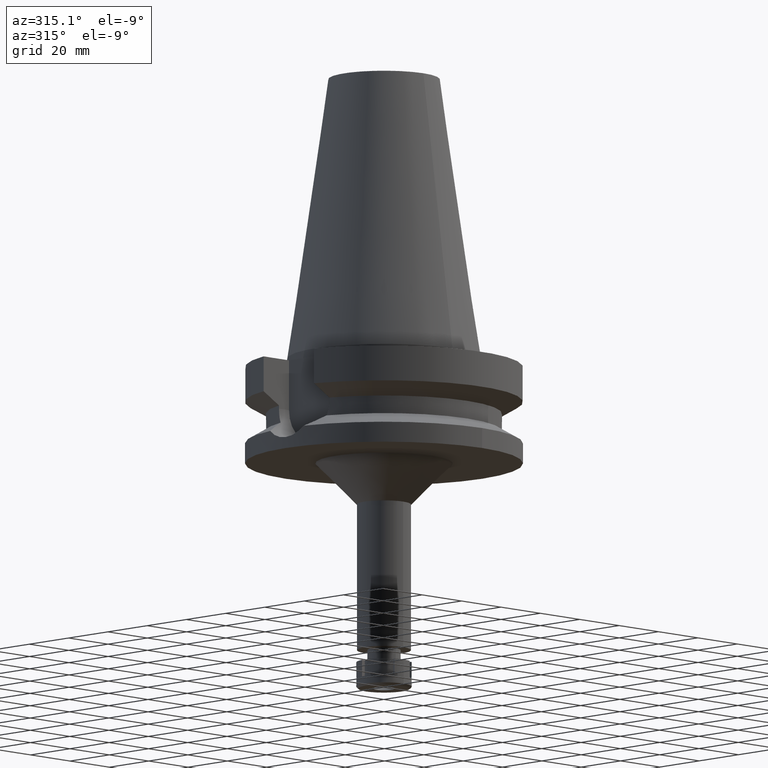
[diagram: clean part render]
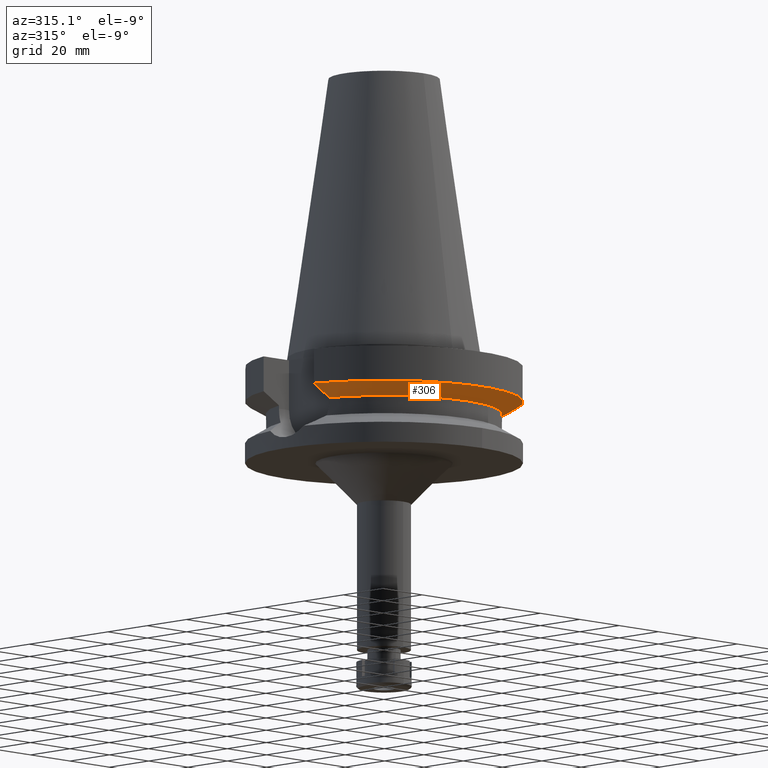
[diagram: same view with one face highlighted and labeled with its STEP entity id]
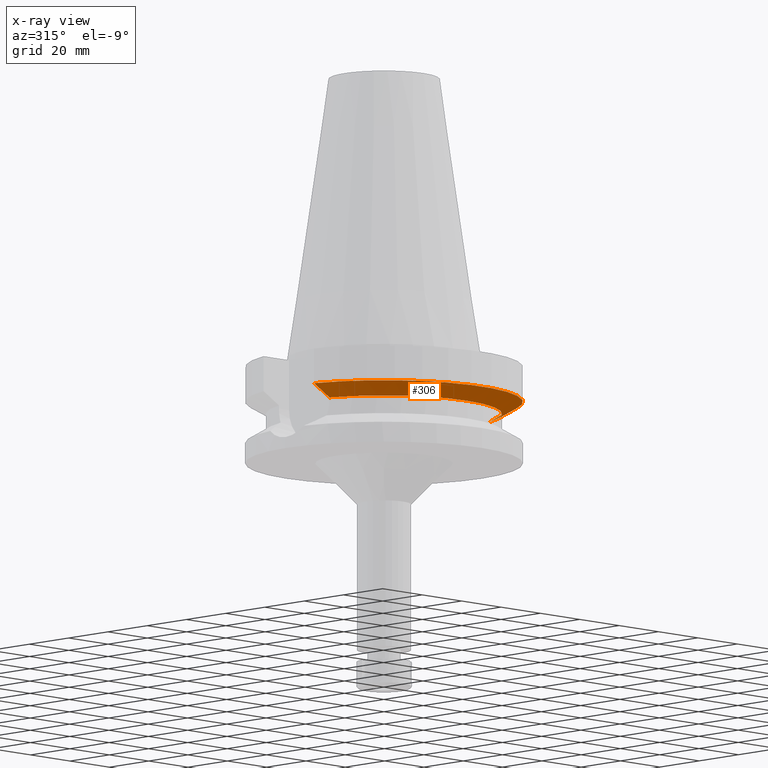
[diagram: x-ray of the same camera — body ghosted, the highlighted face saturated]
A machine part, auxiliary view. The second image highlights one B-rep face of the part: STEP entity #306.
The next image is the same camera in x-ray: the body ghosted, the highlighted face saturated — about 0% of this face is hidden behind the body in this view.
In plain terms, the highlighted conical surface has half-angle 60 deg.
Its self-contained STEP definition (entity closure, byte-faithful):
#4 = CARTESIAN_POINT ( 'NONE',  ( 40.51083188481999997, -12.84999999999999964, -19.99281925464999787 ) ) ;
#107 = DIRECTION ( 'NONE',  ( 0.0000000000000000000, 0.0000000000000000000, -1.000000000000000000 ) ) ;
#110 = DIRECTION ( 'NONE',  ( 0.0000000000000000000, 0.0000000000000000000, 1.000000000000000000 ) ) ;
#129 = CARTESIAN_POINT ( 'NONE',  ( 40.51083188481999997, -12.84999999999999964, -19.99281925464999787 ) ) ;
#130 = CARTESIAN_POINT ( 'NONE',  ( -42.90862468357058646, -12.84999310967845965, -18.67324792381405985 ) ) ;
#306 = ADVANCED_FACE ( 'NONE', ( #2939 ), #1688, .T. ) ;
#346 = CARTESIAN_POINT ( 'NONE',  ( 0.0000000000000000000, 1.006319759053999930E-14, -19.99281925464999787 ) ) ;
#372 = CARTESIAN_POINT ( 'NONE',  ( 42.90862812516864011, -12.84999309977980531, -18.67324600070691432 ) ) ;
#399 = ORIENTED_EDGE ( 'NONE', *, *, #1816, .F. ) ;
#424 = CARTESIAN_POINT ( 'NONE',  ( -45.51179881397922600, -12.85000770643412871, -17.22986717167533399 ) ) ;
#703 = CARTESIAN_POINT ( 'NONE',  ( 45.51179417773550995, -12.85000770643869750, -17.22986972868968891 ) ) ;
#710 = CARTESIAN_POINT ( 'NONE',  ( -40.51083297651000237, -12.84999655833999910, -19.99284566700000099 ) ) ;
#1134 = AXIS2_PLACEMENT_3D ( 'NONE', #1525, #1347, #1266 ) ;
#1240 = DIRECTION ( 'NONE',  ( 0.0000000000000000000, -1.000000000000000000, 0.0000000000000000000 ) ) ;
#1263 = CARTESIAN_POINT ( 'NONE',  ( -40.51083297651000237, -12.84999655833999910, -19.99284566700000099 ) ) ;
#1266 = DIRECTION ( 'NONE',  ( 0.0000000000000000000, 1.000000000000000000, 0.0000000000000000000 ) ) ;
#1327 = VERTEX_POINT ( 'NONE', #2423 ) ;
#1347 = DIRECTION ( 'NONE',  ( 0.0000000000000000000, 0.0000000000000000000, 1.000000000000000000 ) ) ;
#1428 = EDGE_CURVE ( 'NONE', #2824, #1327, #2990, .T. ) ;
#1463 = AXIS2_PLACEMENT_3D ( 'NONE', #346, #107, #1487 ) ;
#1487 = DIRECTION ( 'NONE',  ( 0.9531960443486575674, -0.3023529411764863672, 0.0000000000000000000 ) ) ;
#1525 = CARTESIAN_POINT ( 'NONE',  ( 0.0000000000000000000, 1.006319759053999930E-14, -17.82775574519000017 ) ) ;
#1688 = CONICAL_SURFACE ( 'NONE', #1134, 46.25000000000000000, 1.047197551196400456 ) ;
#1727 = ORIENTED_EDGE ( 'NONE', *, *, #3034, .T. ) ;
#1816 = EDGE_CURVE ( 'NONE', #1912, #1327, #3672, .T. ) ;
#1851 = CARTESIAN_POINT ( 'NONE',  ( 48.32057015392000210, -12.84999999999999964, -15.66269223573000069 ) ) ;
#1912 = VERTEX_POINT ( 'NONE', #3519 ) ;
#2058 = AXIS2_PLACEMENT_3D ( 'NONE', #3213, #110, #1240 ) ;
#2108 = CARTESIAN_POINT ( 'NONE',  ( -48.32056912861000342, -12.85000385554000069, -15.66265769811000119 ) ) ;
#2119 = EDGE_LOOP ( 'NONE', ( #1727, #2790, #2995, #399 ) ) ;
#2358 = B_SPLINE_CURVE_WITH_KNOTS ( 'NONE', 3,
 ( #2108, #424, #130, #1263 ),
 .UNSPECIFIED., .F., .F.,
 ( 4, 4 ),
 ( 0.0000000000000000000, 1.000000000000000000 ),
 .UNSPECIFIED. ) ;
#2377 = EDGE_CURVE ( 'NONE', #2824, #2431, #2657, .T. ) ;
#2423 = CARTESIAN_POINT ( 'NONE',  ( 48.32057015392000210, -12.84999999999999964, -15.66269223573000069 ) ) ;
#2431 = VERTEX_POINT ( 'NONE', #710 ) ;
#2657 = CIRCLE ( 'NONE', #1463, 42.50000000000002132 ) ;
#2790 = ORIENTED_EDGE ( 'NONE', *, *, #2377, .F. ) ;
#2824 = VERTEX_POINT ( 'NONE', #4 ) ;
#2939 = FACE_OUTER_BOUND ( 'NONE', #2119, .T. ) ;
#2990 = B_SPLINE_CURVE_WITH_KNOTS ( 'NONE', 3,
 ( #129, #372, #703, #1851 ),
 .UNSPECIFIED., .F., .F.,
 ( 4, 4 ),
 ( 0.0000000000000000000, 1.000000000000000000 ),
 .UNSPECIFIED. ) ;
#2995 = ORIENTED_EDGE ( 'NONE', *, *, #1428, .T. ) ;
#3034 = EDGE_CURVE ( 'NONE', #1912, #2431, #2358, .T. ) ;
#3213 = CARTESIAN_POINT ( 'NONE',  ( 0.0000000000000000000, 1.006319759053999930E-14, -15.66269223573000069 ) ) ;
#3519 = CARTESIAN_POINT ( 'NONE',  ( -48.32056912861000342, -12.85000385554000069, -15.66265769811000119 ) ) ;
#3672 = CIRCLE ( 'NONE', #2058, 50.00000000000000000 ) ;